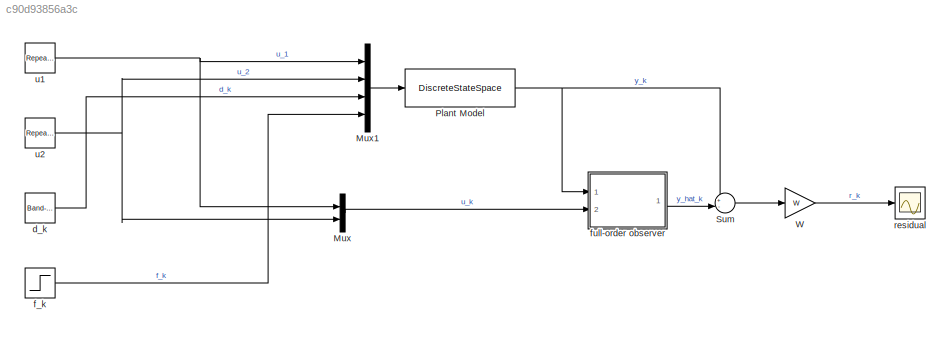
MODEL slx_c90d93856a3c
KIND model
CONFIG AbsTol = auto
CONFIG EnableMultiTasking = off
CONFIG FixedStep = auto
CONFIG MaxStep = auto
CONFIG MinStep = auto
CONFIG RelTol = 1e-3
CONFIG SampleTimeConstraint = Unconstrained
CONFIG Solver = VariableStepAuto
CONFIG SolverName = VariableStepAuto
CONFIG StartTime = 0.0
CONFIG StopTime = 15.0
BLOCK [Mux] Mux
  DisplayOption = bar
  Inputs = 2
  Ports = [2, 1]
BLOCK [Mux] Mux1
  DisplayOption = bar
  Ports = [4, 1]
BLOCK [DiscreteStateSpace] Plant Model
  A = A
  B = [ B, E_d, E_f ]
  C = C
  D = [D, F_d, F_f]
  InitialCondition = x_0
  SampleTime = -1
BLOCK [Sum] Sum
  Inputs = +-|
  Ports = [2, 1]
BLOCK [Gain] W
  Gain = W
  Multiplication = Matrix(K*u)
BLOCK [Reference] d_k  REF=simulink/Sources/Band-Limited
White Noise
  Ports = [0, 1]
  SourceBlock = simulink/Sources/Band-Limited\nWhite Noise
  SourceProductBaseCode = SL
  SourceType = Band-Limited White Noise.
BLOCK [Step] f_k
  After = sigs.faults.amp
  SampleTime = 0
  Time = sigs.faults.times(1,:)
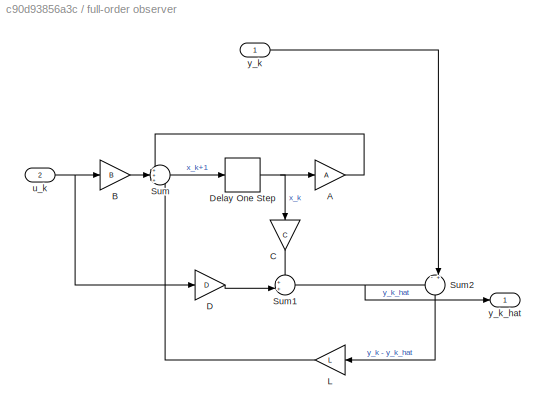
BLOCK [SubSystem] full-order observer
  Ports = [2, 1]
  RequestExecContextInheritance = off
BLOCK [Gain] full-order observer/A
  Gain = A
  Multiplication = Matrix(K*u)
BLOCK [Gain] full-order observer/B
  Gain = B
  Multiplication = Matrix(K*u)
BLOCK [Gain] full-order observer/C
  Gain = C
  Multiplication = Matrix(K*u)
  NameLocation = left
BLOCK [Gain] full-order observer/D
  Gain = D
  Multiplication = Matrix(K*u)
BLOCK [Delay] full-order observer/Delay One Step
  DelayLength = 1
  InputPortMap = u0
  Ports = [1, 1]
BLOCK [Gain] full-order observer/L
  Gain = L
  Multiplication = Matrix(K*u)
  NameLocation = top
BLOCK [Sum] full-order observer/Sum
  Inputs = +++
  Ports = [3, 1]
BLOCK [Sum] full-order observer/Sum1
  Inputs = ++|
  Ports = [2, 1]
BLOCK [Sum] full-order observer/Sum2
  Inputs = -+|
  NameLocation = left
  Ports = [2, 1]
BLOCK [Inport] full-order observer/u_k
  Port = 2
BLOCK [Inport] full-order observer/y_k
BLOCK [Outport] full-order observer/y_k_hat
BLOCK [Scope] residual
  Floating = off
  NumInputPorts = 1
  Ports = [1]
  ScopeSpecificationString = Simulink.scopes.TimeScopeBlockCfg('CurrentConfiguration', extmgr.ConfigurationSet(extmgr.Configuration('Core','General UI',true),extmgr.Configuration('Core','Source UI',true),extmgr.Configuration('Sources','WiredSimulink',true),extmgr.Configuration('Visuals','Time Domain',true,'SerializedDisplays',{struct('MinYLimReal','-18.74608','MaxYLimReal','18.58467','YLabelReal','','MinYLimMag','0.00000','Ma...<+1368ch>
BLOCK [Reference] u1  REF=simulink/Sources/Repeating
Sequence
Stair
  Ports = [0, 1]
  SourceBlock = simulink/Sources/Repeating\nSequence\nStair
  SourceProductBaseCode = SL
  SourceType = Repeating Sequence Stair
BLOCK [Reference] u2  REF=simulink/Sources/Repeating
Sequence
Stair
  Ports = [0, 1]
  SourceBlock = simulink/Sources/Repeating\nSequence\nStair
  SourceProductBaseCode = SL
  SourceType = Repeating Sequence Stair
LINE Mux1:1 -> Plant Model:1
LINE Mux:1 -> full-order observer:2
NET Plant Model:1 -> Sum:1, full-order observer:1
LINE Sum:1 -> W:1
LINE W:1 -> residual:1
LINE d_k:1 -> Mux1:3
LINE f_k:1 -> Mux1:4
LINE full-order observer/A:1 -> full-order observer/Sum:1
LINE full-order observer/B:1 -> full-order observer/Sum:2
LINE full-order observer/C:1 -> full-order observer/Sum1:1
LINE full-order observer/D:1 -> full-order observer/Sum1:2
NET full-order observer/Delay One Step:1 -> full-order observer/A:1, full-order observer/C:1
LINE full-order observer/L:1 -> full-order observer/Sum:3
NET full-order observer/Sum1:1 -> full-order observer/Sum2:1, full-order observer/y_k_hat:1
LINE full-order observer/Sum2:1 -> full-order observer/L:1
LINE full-order observer/Sum:1 -> full-order observer/Delay One Step:1
NET full-order observer/u_k:1 -> full-order observer/B:1, full-order observer/D:1
LINE full-order observer/y_k:1 -> full-order observer/Sum2:2
LINE full-order observer:1 -> Sum:2
NET u1:1 -> Mux1:1, Mux:1
NET u2:1 -> Mux1:2, Mux:2
note: NET lines group one-source signal fan-out (src -> all destinations, sorted); 1:1 wires keep LINE
